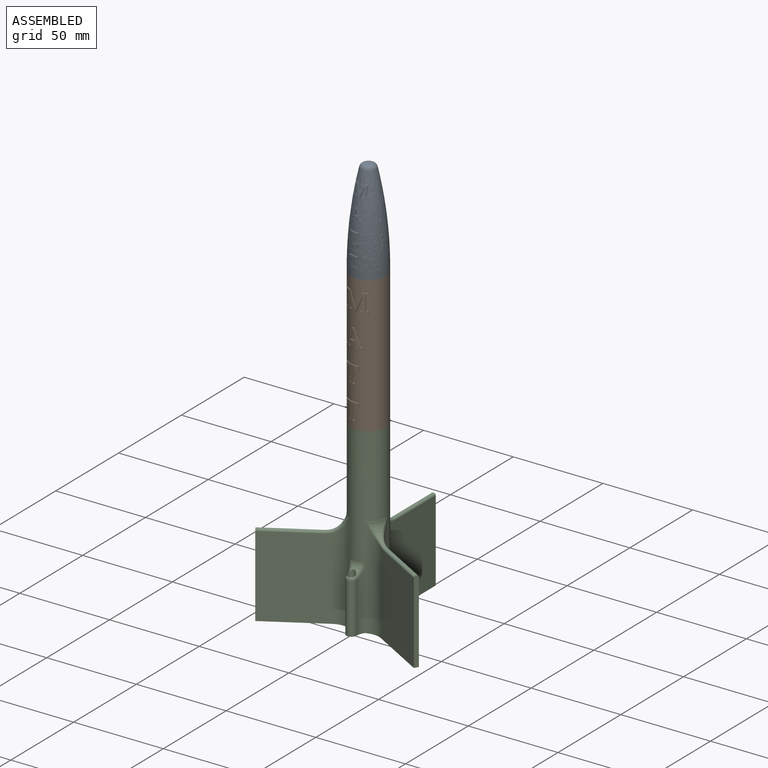
[diagram: assembled view]
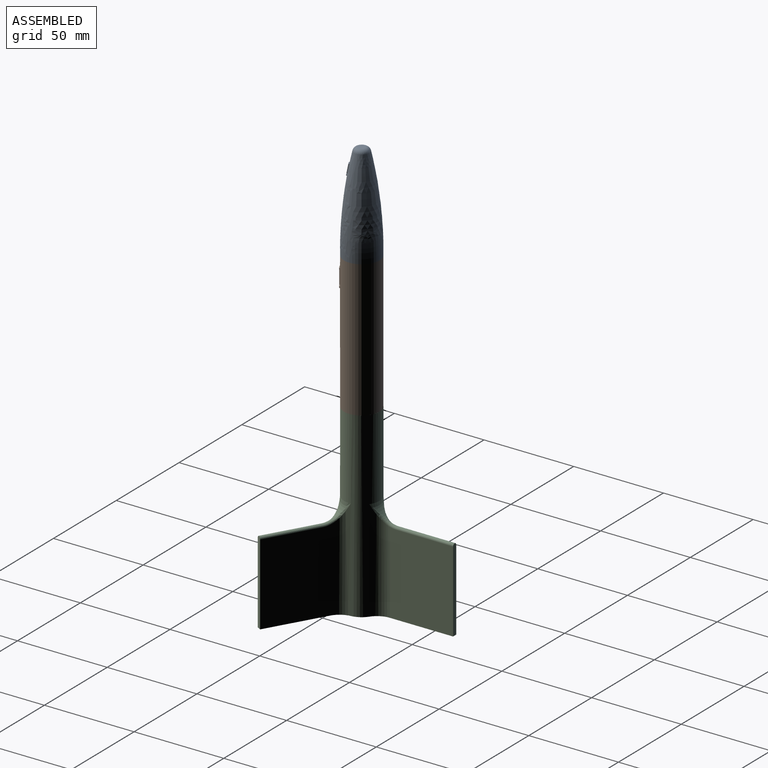
[diagram: assembled view, second angle]
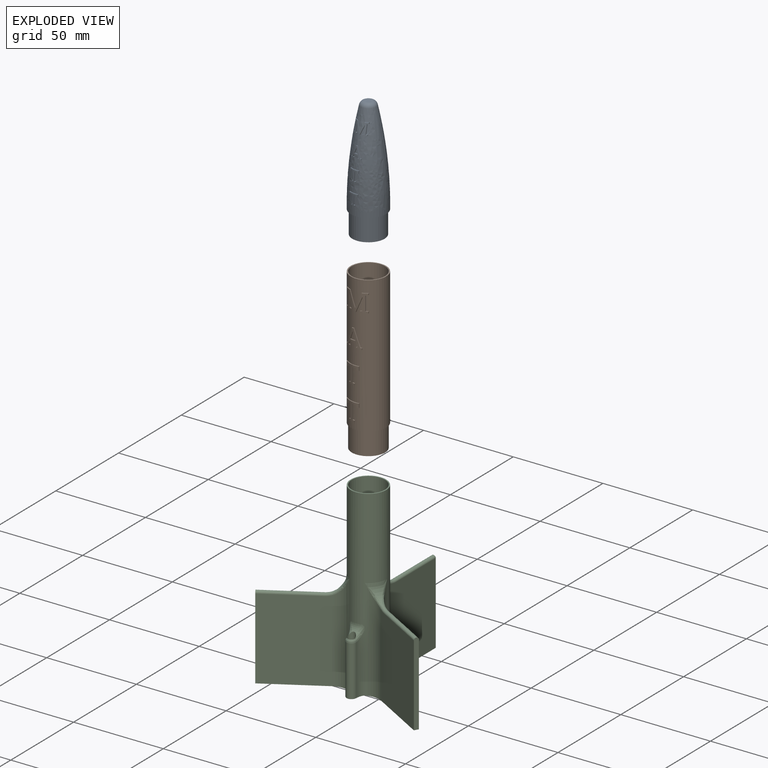
[diagram: exploded view]
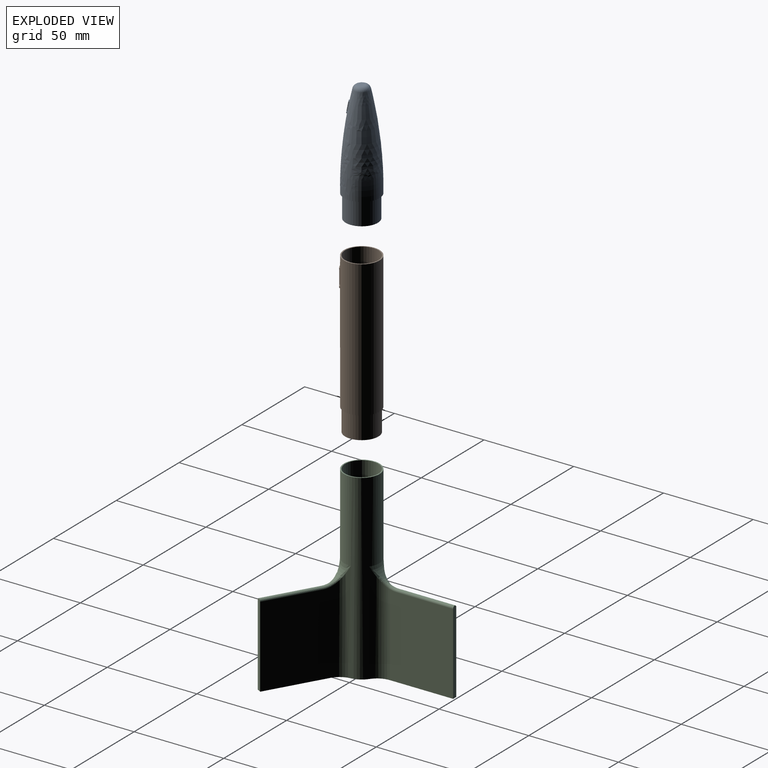
[diagram: exploded view, second angle]
ASSEMBLY  parts=3 mates=2
PART A: 105 faces, bbox 19.9x20.4x67.3 mm
  f0: revolved ~50.1x19.84mm, area 2490mm2, adj f12,f16,f18,f19,f20,f21,f22,f23
  f1: plane 17.3x17.3mm, normal (0,0,1), area 16.3mm2, adj f3,f104
  f2: cylinder r=8.98mm len=17.96mm, axis (0,0,-1), area 716.5mm2, adj f4,f13
  f3: cylinder r=8.34mm len=16.69mm, axis (0,0,-1), area 705.7mm2, adj f1,f4,f7,f8,f9,f10,f11
  f4: plane 17.96x17.96mm, normal (0,0,-1), area 95.4mm2, adj f2,f3,f5,f6,f8,f9,f10,f11
  f5: plane 12.8x6.35mm, normal (0,-1,0), area 81.3mm2, adj f4,f7,f8,f11
  f6: plane 12.8x6.35mm, normal (0,1,0), area 81.3mm2, adj f4,f7,f9,f10
  f7: plane 16.69x7.15mm, normal (0,0,1), area 60.9mm2, adj f3,f5,f6,f8,f9,f10,f11
  f8: cylinder r=1.27mm len=6.35mm, axis (0,0,-1), area 16.2mm2, adj f3,f4,f5,f7
  f9: cylinder r=1.27mm len=6.35mm, axis (0,0,-1), area 16.2mm2, adj f3,f4,f6,f7
  f10: cylinder r=1.27mm len=6.35mm, axis (0,0,-1), area 16.2mm2, adj f3,f4,f6,f7
  f11: cylinder r=1.27mm len=6.35mm, axis (0,0,-1), area 16.2mm2, adj f3,f4,f5,f7
  f12: cylinder r=9.92mm len=19.84mm, axis (0,0,1), area 158.3mm2, adj f0,f13
  f13: plane 19.84x19.84mm, normal (0,0,-1), area 55.8mm2, adj f2,f12
  f14: plane 5.61x5.61mm, normal (0,0,-1), area 24.7mm2, adj f104
  f15: plane 3.59x3.59mm, normal (0,0,1), area 10.1mm2, adj f16
  f16: torus R=1.79mm, axis (0,0,-1), area 70.1mm2, adj f0,f15
  f17: revolved ~9.14x6.27mm, area 23.4mm2, adj f18,f19,f20,f21,f22,f23,f24,f25
  f18: plane 0.65x0.55mm, normal (1,0,0), area 0.3mm2, adj f0,f17,f19,f46
  f19: plane 1.04x0.71mm, normal (0.17,0,-0.99), area 0.4mm2, adj f0,f17,f18,f20
  f20: plane 4.94x1.54mm, normal (1,0,0), area 2.5mm2, adj f0,f17,f19,f21
  f21: plane 0.89x0.7mm, normal (0.17,0,0.99), area 0.4mm2, adj f0,f17,f20,f22
  f22: plane 0.62x0.54mm, normal (1,0,0), area 0.3mm2, adj f0,f17,f21,f47
  f23: plane 5.1x1.99mm, normal (-0.93,0,0.36), area 2.8mm2, adj f0,f17,f45,f46
  f24: plane 5.1x2mm, normal (0.93,0,0.37), area 2.8mm2, adj f0,f17,f44,f45
  f25: plane 0.62x0.54mm, normal (-1,0,0), area 0.3mm2, adj f0,f17,f26,f43
  f26: plane 0.93x0.7mm, normal (-0.17,0,0.99), area 0.4mm2, adj f0,f17,f25,f27
  f27: plane 4.94x1.57mm, normal (-1,0,0), area 2.5mm2, adj f0,f17,f26,f28
  f28: plane 1.1x0.71mm, normal (-0.17,0,-0.99), area 0.4mm2, adj f0,f17,f27,f29
  f29: plane 0.66x0.55mm, normal (-1,0,0), area 0.3mm2, adj f0,f17,f28,f44
  f30: plane 5.02x2.03mm, normal (-0.93,0,-0.37), area 2.8mm2, adj f0,f17,f31,f42
  f31: plane 0.52x0.02mm, normal (0.18,0,-0.98), area 0mm2, adj f0,f17,f30,f32
  f32: plane 2.55x1.07mm, normal (1,0,0.03), area 1.3mm2, adj f0,f17,f31,f33
  f33: plane 1.82x0.86mm, normal (1,0,0), area 0.9mm2, adj f0,f17,f32,f34
  f34: plane 0.75x0.7mm, normal (0.17,0,0.99), area 0.4mm2, adj f0,f17,f33,f35
  f35: plane 0.6x0.54mm, normal (1,0,0), area 0.3mm2, adj f0,f17,f34,f43
  f36: plane 5.03x2.03mm, normal (0.93,0,-0.37), area 2.8mm2, adj f0,f17,f41,f42
  f37: plane 0.6x0.54mm, normal (-1,0,0), area 0.3mm2, adj f0,f17,f38,f47
  f38: plane 0.72x0.7mm, normal (-0.17,0,0.99), area 0.4mm2, adj f0,f17,f37,f39
  f39: plane 1.82x0.85mm, normal (-1,0,0), area 0.9mm2, adj f0,f17,f38,f40
  f40: plane 2.56x1.06mm, normal (-1,0,0.03), area 1.3mm2, adj f0,f17,f39,f41
  f41: plane 0.52x0.02mm, normal (-0.18,0,-0.98), area 0mm2, adj f0,f17,f36,f40
  f42: plane 0.56x0.52mm, normal (0,0,-1), area 0.3mm2, adj f0,f17,f30,f36
  f43: plane 2.25x1.55mm, normal (0,0,-1), area 1.1mm2, adj f0,f17,f25,f35
  f44: plane 1.79x1.67mm, normal (0,0,1), area 0.9mm2, adj f0,f17,f24,f29
  f45: plane 0.51x0.03mm, normal (0,0,1), area 0mm2, adj f0,f17,f23,f24
  f46: plane 1.79x1.55mm, normal (0,0,1), area 0.9mm2, adj f0,f17,f18,f23
  f47: plane 2.25x1.44mm, normal (0,0,-1), area 1.1mm2, adj f0,f17,f22,f37
  f48: plane 1.16x0.52mm, normal (0.94,0,-0.35), area 0.6mm2, adj f0,f49,f62,f64
  f49: plane 0.66x0.47mm, normal (0.17,0,0.99), area 0.2mm2, adj f0,f48,f50,f64
  f50: plane 0.57x0.54mm, normal (1,0,0), area 0.3mm2, adj f0,f49,f63,f64
  f51: plane 0.57x0.54mm, normal (-1,0,0), area 0.3mm2, adj f0,f52,f61,f64
  f52: plane 0.54x0.47mm, normal (-0.17,0,0.99), area 0.2mm2, adj f0,f51,f53,f64
  f53: plane 1.16x0.63mm, normal (-0.94,0,-0.34), area 0.6mm2, adj f0,f52,f62,f64
  f54: plane 5.66x2.15mm, normal (0.93,0,0.36), area 3.1mm2, adj f0,f55,f60,f64
  f55: plane 0.6x0.46mm, normal (0.14,0,0.99), area 0.2mm2, adj f0,f54,f56,f64
  f56: plane 0.57x0.54mm, normal (1,0,0), area 0.3mm2, adj f0,f55,f61,f64
  f57: plane 5.66x2.19mm, normal (-0.93,0,0.36), area 3.1mm2, adj f0,f59,f60,f64
  f58: plane 0.58x0.54mm, normal (-1,0,0), area 0.3mm2, adj f0,f59,f63,f64
  f59: plane 0.73x0.47mm, normal (-0.14,0,0.99), area 0.2mm2, adj f0,f57,f58,f64
  f60: plane 0.73x0.6mm, normal (0,0,1), area 0.4mm2, adj f0,f54,f57,f64
  f61: plane 1.8x0.75mm, normal (0,0,-1), area 0.9mm2, adj f0,f51,f56,f64
  f62: plane 2.51x0.82mm, normal (0,0,-1), area 1.3mm2, adj f0,f48,f53,f64
  f63: plane 1.8x1.22mm, normal (0,0,-1), area 0.9mm2, adj f0,f50,f58,f64
  f64: revolved ~6.27x6.04mm, area 12.8mm2, adj f48,f49,f50,f51,f52,f53,f54,f55
  f65: plane 2.71x1mm, normal (0.94,0,-0.35), area 1.5mm2, adj f64,f67,f68,f69
  f66: plane 2.71x1mm, normal (-0.94,0,-0.34), area 1.5mm2, adj f64,f67,f68,f69
  f67: plane 0.51x0.03mm, normal (0,0,-1), area 0mm2, adj f64,f65,f66,f69
  f68: plane 1.99x0.75mm, normal (0,0,1), area 1mm2, adj f64,f65,f66,f69
  f69: revolved ~2.69x1.99mm, area 2.7mm2, adj f65,f66,f67,f68
  f70: revolved ~6.27x5.49mm, area 10.4mm2, adj f71,f72,f73,f74,f75,f76,f77,f78
  f71: plane 1.39x0.65mm, normal (-1,0,0), area 0.7mm2, adj f0,f70,f85,f86
  f72: plane 0.72x0.55mm, normal (1,0,-0.08), area 0.4mm2, adj f0,f70,f84,f85
  f73: plane 0.54x0.54mm, normal (-1,0,0), area 0.3mm2, adj f0,f70,f74,f83
  f74: plane 0.7x0.67mm, normal (-0.17,0,0.99), area 0.4mm2, adj f0,f70,f73,f75
  f75: plane 4.95x0.91mm, normal (-1,0,0), area 2.5mm2, adj f0,f70,f74,f84
  f76: plane 4.95x0.9mm, normal (1,0,0), area 2.5mm2, adj f0,f70,f77,f82
  f77: plane 0.7x0.57mm, normal (0.17,0,0.99), area 0.4mm2, adj f0,f70,f76,f78
  f78: plane 0.54x0.54mm, normal (1,0,0), area 0.3mm2, adj f0,f70,f77,f83
  f79: plane 0.72x0.57mm, normal (-1,0,-0.09), area 0.4mm2, adj f0,f70,f81,f82
  f80: plane 1.39x0.63mm, normal (1,0,0), area 0.7mm2, adj f0,f70,f81,f86
  f81: plane 0.72x0.57mm, normal (0,0,-1), area 0.4mm2, adj f0,f70,f79,f80
  f82: plane 1.39x0.57mm, normal (0,0,-1), area 0.7mm2, adj f0,f70,f76,f79
  f83: plane 2.25x0.86mm, normal (0,0,-1), area 1.1mm2, adj f0,f70,f73,f78
  f84: plane 1.39x0.92mm, normal (0,0,-1), area 0.7mm2, adj f0,f70,f72,f75
  f85: plane 0.83x0.73mm, normal (0,0,-1), area 0.4mm2, adj f0,f70,f71,f72
  f86: plane 5.21x1.48mm, normal (0,0,1), area 2.6mm2, adj f0,f70,f71,f80
  f87: revolved ~6.27x5.29mm, area 10.4mm2, adj f88,f89,f90,f91,f92,f93,f94,f95
  f88: plane 1.39x0.56mm, normal (-1,0,0), area 0.7mm2, adj f0,f87,f102,f103
  f89: plane 0.72x0.51mm, normal (1,0,-0.08), area 0.4mm2, adj f0,f87,f101,f102
  f90: plane 0.54x0.52mm, normal (-1,0,0), area 0.3mm2, adj f0,f87,f91,f100
  f91: plane 0.7x0.67mm, normal (-0.17,0,0.99), area 0.4mm2, adj f0,f87,f90,f92
  f92: plane 4.95x0.64mm, normal (-1,0,0), area 2.5mm2, adj f0,f87,f91,f101
  f93: plane 4.95x0.64mm, normal (1,0,0), area 2.5mm2, adj f0,f87,f94,f99
  f94: plane 0.7x0.56mm, normal (0.17,0,0.99), area 0.4mm2, adj f0,f87,f93,f95
  f95: plane 0.54x0.51mm, normal (1,0,0), area 0.3mm2, adj f0,f87,f94,f100
  f96: plane 0.72x0.53mm, normal (-1,0,-0.09), area 0.4mm2, adj f0,f87,f98,f99
  f97: plane 1.39x0.56mm, normal (1,0,0), area 0.7mm2, adj f0,f87,f98,f103
  f98: plane 0.72x0.57mm, normal (0,0,-1), area 0.4mm2, adj f0,f87,f96,f97
  f99: plane 1.39x0.56mm, normal (0,0,-1), area 0.7mm2, adj f0,f87,f93,f96
  f100: plane 2.25x0.85mm, normal (0,0,-1), area 1.1mm2, adj f0,f87,f90,f95
  f101: plane 1.39x0.89mm, normal (0,0,-1), area 0.7mm2, adj f0,f87,f89,f92
  f102: plane 0.81x0.73mm, normal (0,0,-1), area 0.4mm2, adj f0,f87,f88,f89
  f103: plane 5.21x1.4mm, normal (0,0,1), area 2.6mm2, adj f0,f87,f88,f97
  f104: revolved ~50.8x17.3mm, area 2156.5mm2, adj f1,f14
PART B: 120 faces, bbox 20x20.4x89 mm
  f0: cylinder r=9.28mm len=72.39mm, axis (0,0,-1), area 3696.3mm2, adj f2,f8,f9,f13,f14,f113,f114,f115
  f1: cylinder r=9.92mm len=76.2mm, axis (0,0,-1), area 4594.7mm2, adj f2,f3,f16,f17,f18,f19,f20,f21
  f2: plane 19.84x19.84mm, normal (0,0,1), area 38.3mm2, adj f0,f1
  f3: plane 19.84x19.84mm, normal (0,0,-1), area 38.3mm2, adj f1,f4
  f4: cylinder r=9.28mm len=18.57mm, axis (0,0,1), area 740.8mm2, adj f3,f7
  f5: cylinder r=8.47mm len=19.05mm, axis (0,0,1), area 1006.3mm2, adj f6,f7,f8,f113,f114,f116,f117,f118
  f6: cylinder r=8.47mm len=1.67mm, axis (0,0,1), area 1.8mm2, adj f5,f8,f115,f119
  f7: plane 18.57x18.57mm, normal (0,0,-1), area 45.3mm2, adj f4,f5
  f8: torus R=4.2mm, axis (0,0,-1), area 160.9mm2, adj f0,f5,f6,f116,f119
  f9: cylinder r=4.22mm len=26.67mm, axis (0,0,1), area 217.7mm2, adj f0,f11,f12,f13,f14,f102,f103,f104
  f10: cylinder r=1.65mm len=23.93mm, axis (0,0,1), area 211.2mm2, adj f13,f14,f102,f103,f104,f105,f107,f108
  f11: plane 2.76x0.42mm, normal (0,0,-1), area 0.8mm2, adj f9,f14
  f12: plane 2.76x0.42mm, normal (0,0,1), area 0.8mm2, adj f9,f13
  f13: torus R=5.47mm, axis (0,0,1), area 31.3mm2, adj f0,f9,f10,f12
  f14: torus R=5.47mm, axis (0,0,1), area 31.3mm2, adj f0,f9,f10,f11
  f15: cylinder r=9.92mm len=12.15mm, axis (0,0,-1), area 59mm2, adj f16,f17,f18,f19,f20,f21,f22,f23
  f16: plane 2.91x0.51mm, normal (-1,0,0), area 1.5mm2, adj f1,f15,f43,f44
  f17: plane 0.87x0.51mm, normal (-1,0,0), area 0.4mm2, adj f1,f15,f42,f43
  f18: plane 0.87x0.51mm, normal (1,0,0), area 0.4mm2, adj f1,f15,f41,f42
  f19: plane 7.9x0.51mm, normal (1,0,0), area 4mm2, adj f1,f15,f40,f41
  f20: plane 0.88x0.51mm, normal (1,0,0), area 0.4mm2, adj f1,f15,f39,f40
  f21: plane 0.88x0.51mm, normal (-1,0,0), area 0.4mm2, adj f1,f15,f34,f35
  f22: plane 7.9x0.51mm, normal (-1,0,0), area 4mm2, adj f1,f15,f33,f34
  f23: plane 0.87x0.51mm, normal (-1,0,0), area 0.4mm2, adj f1,f15,f32,f33
  f24: plane 0.87x0.51mm, normal (1,0,0), area 0.4mm2, adj f1,f15,f31,f32
  f25: plane 2.91x0.51mm, normal (1,0,0), area 1.5mm2, adj f1,f15,f30,f31
  f26: plane 8.04x3.25mm, normal (0.93,0,-0.37), area 4.4mm2, adj f1,f15,f27,f45
  f27: plane 0.9x0.53mm, normal (0,0,-1), area 0.5mm2, adj f1,f15,f26,f28
  f28: plane 8.03x3.25mm, normal (-0.93,0,-0.37), area 4.4mm2, adj f1,f15,f27,f29
  f29: plane 0.52x0.04mm, normal (0.18,0,-0.98), area 0mm2, adj f1,f15,f28,f30
  f30: plane 4.07x0.57mm, normal (1,0,0.03), area 2.1mm2, adj f1,f15,f25,f29
  f31: plane 1.12x0.9mm, normal (0.17,0,0.99), area 0.6mm2, adj f1,f15,f24,f25
  f32: plane 3.6x2.38mm, normal (0,0,-1), area 1.8mm2, adj f1,f15,f23,f24
  f33: plane 1.31x1.13mm, normal (-0.17,0,0.99), area 0.6mm2, adj f1,f15,f22,f23
  f34: plane 1.31x1.13mm, normal (-0.17,0,-0.99), area 0.6mm2, adj f1,f15,f21,f22
  f35: plane 2.86x2.14mm, normal (0,0,1), area 1.5mm2, adj f1,f15,f21,f36
  f36: plane 8.15x3.2mm, normal (0.93,0,0.37), area 4.4mm2, adj f1,f15,f35,f37
  f37: plane 0.51x0.04mm, normal (0,0,1), area 0mm2, adj f1,f15,f36,f38
  f38: plane 8.15x3.19mm, normal (-0.93,0,0.36), area 4.4mm2, adj f1,f15,f37,f39
  f39: plane 2.87x1.97mm, normal (0,0,1), area 1.5mm2, adj f1,f15,f20,f38
  f40: plane 1.23x1.13mm, normal (0.17,0,-0.99), area 0.6mm2, adj f1,f15,f19,f20
  f41: plane 1.23x1.13mm, normal (0.17,0,0.99), area 0.6mm2, adj f1,f15,f18,f19
  f42: plane 3.6x2.18mm, normal (0,0,-1), area 1.8mm2, adj f1,f15,f17,f18
  f43: plane 1.12x0.85mm, normal (-0.17,0,0.99), area 0.6mm2, adj f1,f15,f16,f17
  f44: plane 4.07x0.56mm, normal (-1,0,0.03), area 2.1mm2, adj f1,f15,f16,f45
  f45: plane 0.52x0.04mm, normal (-0.18,0,-0.98), area 0mm2, adj f1,f15,f26,f44
  f46: plane 0.87x0.51mm, normal (1,0,0), area 0.4mm2, adj f1,f51,f53,f57
  f47: plane 0.87x0.51mm, normal (-1,0,0), area 0.4mm2, adj f1,f53,f61,f62
  f48: plane 0.87x0.51mm, normal (1,0,0), area 0.4mm2, adj f1,f53,f62,f63
  f49: plane 9.06x3.51mm, normal (-0.93,0,0.36), area 4.9mm2, adj f1,f50,f53,f65
  f50: plane 1.08x0.74mm, normal (-0.14,0,0.99), area 0.4mm2, adj f1,f49,f52,f53
  f51: plane 2.87x2.19mm, normal (0,0,-1), area 1.5mm2, adj f1,f46,f52,f53
  f52: plane 0.87x0.51mm, normal (-1,0,0), area 0.4mm2, adj f1,f50,f51,f53
  f53: cylinder r=9.92mm len=10.03mm, axis (0,0,-1), area 33.2mm2, adj f46,f47,f48,f49,f50,f51,f52,f54
  f54: plane 3.18x1.03mm, normal (0,0,1), area 1.6mm2, adj f53,f55,f66,f67
  f55: plane 4.31x1.59mm, normal (0.94,0,-0.35), area 2.3mm2, adj f53,f54,f56,f67
  f56: plane 0.51x0.04mm, normal (0,0,-1), area 0mm2, adj f53,f55,f66,f67
  f57: plane 0.83x0.76mm, normal (0.17,0,0.99), area 0.4mm2, adj f1,f46,f53,f58
  f58: plane 1.86x0.82mm, normal (0.94,0,-0.35), area 1mm2, adj f1,f53,f57,f59
  f59: plane 4.02x1.18mm, normal (0,0,-1), area 2mm2, adj f1,f53,f58,f60
  f60: plane 1.85x0.66mm, normal (-0.94,0,-0.34), area 1mm2, adj f1,f53,f59,f61
  f61: plane 0.76x0.56mm, normal (-0.17,0,0.99), area 0.4mm2, adj f1,f47,f53,f60
  f62: plane 2.88x1.04mm, normal (0,0,-1), area 1.5mm2, adj f1,f47,f48,f53
  f63: plane 0.74x0.73mm, normal (0.14,0,0.99), area 0.4mm2, adj f1,f48,f53,f64
  f64: plane 9.06x3.45mm, normal (0.93,0,0.36), area 4.9mm2, adj f1,f53,f63,f65
  f65: plane 1.16x0.69mm, normal (0,0,1), area 0.6mm2, adj f1,f49,f53,f64
  f66: plane 4.32x1.57mm, normal (-0.94,0,-0.34), area 2.3mm2, adj f53,f54,f56,f67
  f67: cylinder r=9.92mm len=4.31mm, axis (0,0,-1), area 7mm2, adj f54,f55,f56,f66
  f68: plane 2.22x0.51mm, normal (1,0,0), area 1.1mm2, adj f1,f75,f78,f84
  f69: plane 7.9x0.51mm, normal (-1,0,0), area 4mm2, adj f1,f74,f78,f79
  f70: plane 0.87x0.51mm, normal (-1,0,0), area 0.4mm2, adj f1,f78,f79,f80
  f71: plane 0.87x0.51mm, normal (1,0,0), area 0.4mm2, adj f1,f78,f80,f81
  f72: plane 7.9x0.51mm, normal (1,0,0), area 4mm2, adj f1,f78,f81,f82
  f73: plane 1.15x0.57mm, normal (1,0,-0.08), area 0.6mm2, adj f1,f74,f76,f78
  f74: plane 2.23x1.54mm, normal (0,0,-1), area 1.1mm2, adj f1,f69,f73,f78
  f75: plane 8.34x2.94mm, normal (0,0,1), area 4.2mm2, adj f1,f68,f77,f78
  f76: plane 1.38x1.16mm, normal (0,0,-1), area 0.6mm2, adj f1,f73,f77,f78
  f77: plane 2.22x0.51mm, normal (-1,0,0), area 1.1mm2, adj f1,f75,f76,f78
  f78: cylinder r=9.92mm len=10.03mm, axis (0,0,-1), area 27.5mm2, adj f68,f69,f70,f71,f72,f73,f74,f75
  f79: plane 1.12x0.94mm, normal (-0.17,0,0.99), area 0.6mm2, adj f1,f69,f70,f78
  f80: plane 3.6x1.4mm, normal (0,0,-1), area 1.8mm2, adj f1,f70,f71,f78
  f81: plane 1.12x0.63mm, normal (0.17,0,0.99), area 0.6mm2, adj f1,f71,f72,f78
  f82: plane 2.22x0.65mm, normal (0,0,-1), area 1.1mm2, adj f1,f72,f78,f83
  f83: plane 1.15x0.51mm, normal (-1,0,-0.09), area 0.6mm2, adj f1,f78,f82,f84
  f84: plane 1.16x0.66mm, normal (0,0,-1), area 0.6mm2, adj f1,f68,f78,f83
  f85: plane 2.22x0.51mm, normal (1,0,0), area 1.1mm2, adj f1,f91,f92,f101
  f86: plane 2.22x0.51mm, normal (-1,0,0), area 1.1mm2, adj f1,f91,f92,f93
  f87: plane 0.87x0.51mm, normal (-1,0,0), area 0.4mm2, adj f1,f91,f96,f97
  f88: plane 0.87x0.51mm, normal (1,0,0), area 0.4mm2, adj f1,f91,f97,f98
  f89: plane 7.9x0.51mm, normal (-1,0,0), area 4mm2, adj f1,f91,f95,f96
  f90: plane 7.9x0.51mm, normal (1,0,0), area 4mm2, adj f1,f91,f98,f99
  f91: cylinder r=9.92mm len=10.03mm, axis (0,0,-1), area 27.5mm2, adj f85,f86,f87,f88,f89,f90,f92,f93
  f92: plane 8.34x2.94mm, normal (0,0,1), area 4.2mm2, adj f1,f85,f86,f91
  f93: plane 1.38x1.16mm, normal (0,0,-1), area 0.6mm2, adj f1,f86,f91,f94
  f94: plane 1.15x0.57mm, normal (1,0,-0.08), area 0.6mm2, adj f1,f91,f93,f95
  f95: plane 2.23x1.54mm, normal (0,0,-1), area 1.1mm2, adj f1,f89,f91,f94
  f96: plane 1.12x0.94mm, normal (-0.17,0,0.99), area 0.6mm2, adj f1,f87,f89,f91
  f97: plane 3.6x1.4mm, normal (0,0,-1), area 1.8mm2, adj f1,f87,f88,f91
  f98: plane 1.12x0.63mm, normal (0.17,0,0.99), area 0.6mm2, adj f1,f88,f90,f91
  f99: plane 2.22x0.65mm, normal (0,0,-1), area 1.1mm2, adj f1,f90,f91,f100
  f100: plane 1.15x0.51mm, normal (-1,0,-0.09), area 0.6mm2, adj f1,f91,f99,f101
  f101: plane 1.16x0.66mm, normal (0,0,-1), area 0.6mm2, adj f1,f85,f91,f100
  f102: plane 2.43x0.65mm, normal (0,-1,0), area 1mm2, adj f9,f10,f104,f105,f106
  f103: plane 1.39x0.87mm, normal (1,0,0), area 1.2mm2, adj f9,f10,f104,f105
  f104: plane 2.7x1.31mm, normal (0,0,1), area 1.7mm2, adj f9,f10,f102,f103
  f105: plane 2.74x0.79mm, normal (0.14,0,-0.99), area 1.1mm2, adj f9,f10,f102,f103,f106
  f106: plane 1.77x1.45mm, normal (0.93,0,-0.36), area 1.7mm2, adj f9,f102,f105
  f107: plane 2.22x0.65mm, normal (0,-1,0), area 1.2mm2, adj f9,f10,f109,f110,f111,f112
  f108: plane 2.22x1.41mm, normal (1,0,0), area 3.1mm2, adj f9,f10,f109,f110
  f109: plane 2.81x1.16mm, normal (0,0,1), area 1.7mm2, adj f9,f10,f107,f108,f112
  f110: plane 2.81x1.43mm, normal (0,0,-1), area 1.9mm2, adj f9,f10,f107,f108
  f111: plane 0.87x0.17mm, normal (0,0,1), area 0.1mm2, adj f9,f107,f112
  f112: plane 1.21x1.21mm, normal (-1,0,0.08), area 1.2mm2, adj f9,f107,f109,f111
  f113: plane 1.39x1.13mm, normal (0.17,0,-0.99), area 1mm2, adj f0,f5,f116,f117
  f114: plane 3.6x1.87mm, normal (0,0,1), area 3.1mm2, adj f0,f5,f117,f118
  f115: plane 1.12x0.96mm, normal (-0.17,0,-0.99), area 0.9mm2, adj f0,f6,f118,f119
  f116: plane 4.24x0.87mm, normal (1,0,0), area 2mm2, adj f0,f5,f8,f113
  f117: plane 0.92x0.87mm, normal (1,0,0), area 0.8mm2, adj f0,f5,f113,f114
  f118: plane 0.87x0.81mm, normal (-1,0,0), area 0.7mm2, adj f0,f5,f114,f115
  f119: plane 4.32x0.92mm, normal (-1,0,0), area 2mm2, adj f0,f6,f8,f115
PART C: 165 faces, bbox 91x78.8x101.6 mm
  f0: plane 45.8x35.29mm, normal (-1,0,0), area 1511.2mm2, adj f5,f6,f8,f11,f13,f48,f49,f50
  f1: cylinder r=9.28mm len=18.57mm, axis (0,0,-1), area 889mm2, adj f4,f44
  f2: cylinder r=9.28mm len=73.66mm, axis (0,0,-1), area 4288.1mm2, adj f5,f45,f46,f47
  f3: cylinder r=9.92mm len=101.6mm, axis (0,0,-1), area 3980.1mm2, adj f4,f5,f8,f9,f10,f18,f19,f20
  f4: plane 19.84x19.84mm, normal (0,0,1), area 38.3mm2, adj f1,f3
  f5: plane 90.98x78.79mm, normal (0,0,-1), area 420.3mm2, adj f0,f2,f3,f6,f7,f8,f9,f15
  f6: plane 46.5x2.54mm, normal (0,1,0), area 117.4mm2, adj f0,f5,f7,f11
  f7: plane 45.8x35.29mm, normal (1,0,0), area 1596.5mm2, adj f5,f6,f9,f11,f13
  f8: cylinder r=10.16mm len=56.66mm, axis (0,0,-1), area 502.4mm2, adj f0,f3,f5,f14
  f9: cylinder r=10.16mm len=56.66mm, axis (0,0,-1), area 502.4mm2, adj f3,f5,f7,f12
  f10: torus R=20.08mm, axis (0,0,-1), area 86.2mm2, adj f3,f12,f14
  f11: cylinder r=1.27mm len=31.71mm, axis (0,1,0), area 126.5mm2, adj f0,f6,f7,f13
  f12: bspline ~11.3x10.36mm, area 10.9mm2, adj f9,f10,f13
  f13: torus R=11.43mm, axis (1,0,0), area 13.5mm2, adj f0,f7,f11,f12,f14
  f14: bspline ~11.3x10.36mm, area 10.9mm2, adj f8,f10,f13
  f15: plane 45.8x30.56mm, normal (-0.5,-0.87,0), area 1596.5mm2, adj f5,f17,f20,f21,f23
  f16: plane 45.8x30.56mm, normal (0.5,0.87,0), area 1596.5mm2, adj f5,f17,f18,f21,f23
  f17: plane 46.5x2.2mm, normal (0.87,-0.5,0), area 117.4mm2, adj f5,f15,f16,f21
  f18: cylinder r=10.16mm len=56.66mm, axis (0,0,-1), area 502.4mm2, adj f3,f5,f16,f24
  f19: torus R=20.08mm, axis (0,0,-1), area 86.2mm2, adj f3,f22,f24
  f20: cylinder r=10.16mm len=56.66mm, axis (0,0,-1), area 502.4mm2, adj f3,f5,f15,f22,f36
  f21: cylinder r=1.27mm len=28.74mm, axis (0.87,-0.5,0), area 126.5mm2, adj f15,f16,f17,f23
  f22: bspline ~11.72x11.3mm, area 10.9mm2, adj f19,f20,f23
  f23: torus R=11.43mm, axis (-0.5,-0.87,0), area 13.5mm2, adj f15,f16,f21,f22,f24
  f24: bspline ~11.3x9.95mm, area 10.9mm2, adj f18,f19,f23
  f25: plane 45.8x30.56mm, normal (-0.5,0.87,0), area 1596.5mm2, adj f5,f27,f30,f31,f33
  f26: plane 45.8x30.56mm, normal (0.5,-0.87,0), area 1596.5mm2, adj f5,f27,f28,f31,f33
  f27: plane 46.5x2.2mm, normal (-0.87,-0.5,0), area 117.4mm2, adj f5,f25,f26,f31
  f28: cylinder r=10.16mm len=56.66mm, axis (0,0,-1), area 502.4mm2, adj f3,f5,f26,f34,f35
  f29: torus R=20.08mm, axis (0,0,-1), area 86.2mm2, adj f3,f32,f34
  f30: cylinder r=10.16mm len=56.66mm, axis (0,0,-1), area 502.4mm2, adj f3,f5,f25,f32
  f31: cylinder r=1.27mm len=28.74mm, axis (-0.87,-0.5,0), area 126.5mm2, adj f25,f26,f27,f33
  f32: bspline ~11.3x9.95mm, area 10.9mm2, adj f29,f30,f33
  f33: torus R=11.43mm, axis (-0.5,0.87,0), area 13.5mm2, adj f25,f26,f31,f32,f34
  f34: bspline ~11.72x11.3mm, area 10.9mm2, adj f28,f29,f33
  f35: cylinder r=7.73mm len=33.12mm, axis (0,0,-1), area 149.7mm2, adj f5,f28,f37,f42
  f36: cylinder r=7.73mm len=33.12mm, axis (0,0,-1), area 149.7mm2, adj f5,f20,f37,f40
  f37: cylinder r=2.74mm len=28.08mm, axis (0,0,-1), area 242mm2, adj f5,f35,f36,f41
  f38: cylinder r=2.1mm len=31.93mm, axis (0,0,-1), area 400.6mm2, adj f5,f39,f40,f41,f42
  f39: torus R=15mm, axis (0,0,-1), area 20mm2, adj f3,f38,f40,f42
  f40: bspline ~8x6.43mm, area 18.5mm2, adj f3,f36,f38,f39,f41
  f41: bspline ~5.49x2.74mm, area 13.4mm2, adj f37,f38,f40,f42
  f42: bspline ~8x6.43mm, area 17.4mm2, adj f3,f35,f38,f39,f41
  f43: cylinder r=7.62mm len=15.24mm, axis (0,0,-1), area 608mm2, adj f44,f45
  f44: plane 18.57x18.57mm, normal (0,0,1), area 88.4mm2, adj f1,f43
  f45: plane 18.57x18.57mm, normal (0,0,-1), area 88.4mm2, adj f2,f43
  f46: cylinder r=2.54mm len=3.75mm, axis (0,0,-1), area 9.6mm2, adj f2,f5,f47
  f47: plane 3.75x1.02mm, normal (0,0,1), area 2.6mm2, adj f2,f46
  f48: plane 0.51x0.02mm, normal (0,0.18,-0.98), area 0mm2, adj f0,f49,f77,f78
  f49: plane 2.81x0.51mm, normal (0,1,0.03), area 1.4mm2, adj f0,f48,f50,f78
  f50: plane 2.01x0.51mm, normal (0,1,0), area 1mm2, adj f0,f49,f51,f78
  f51: plane 0.78x0.51mm, normal (0,0.17,0.99), area 0.4mm2, adj f0,f50,f52,f78
  f52: plane 0.6x0.51mm, normal (0,1,0), area 0.3mm2, adj f0,f51,f53,f78
  f53: plane 2.49x0.51mm, normal (0,0,-1), area 1.3mm2, adj f0,f52,f54,f78
  f54: plane 0.6x0.51mm, normal (0,-1,0), area 0.3mm2, adj f0,f53,f55,f78
  f55: plane 0.78x0.51mm, normal (0,-0.17,0.99), area 0.4mm2, adj f0,f54,f56,f78
  f56: plane 5.47x0.51mm, normal (0,-1,0), area 2.8mm2, adj f0,f55,f57,f78
  f57: plane 0.78x0.51mm, normal (0,-0.17,-0.99), area 0.4mm2, adj f0,f56,f58,f78
  f58: plane 0.61x0.51mm, normal (0,-1,0), area 0.3mm2, adj f0,f57,f59,f78
  f59: plane 1.98x0.51mm, normal (0,0,1), area 1mm2, adj f0,f58,f60,f78
  f60: plane 5.64x2.2mm, normal (0,0.93,0.36), area 3.1mm2, adj f0,f59,f61,f78
  f61: plane 0.51x0.03mm, normal (0,0,1), area 0mm2, adj f0,f60,f62,f78
  f62: plane 5.64x2.21mm, normal (0,-0.93,0.37), area 3.1mm2, adj f0,f61,f63,f78
  f63: plane 1.98x0.51mm, normal (0,0,1), area 1mm2, adj f0,f62,f64,f78
  f64: plane 0.61x0.51mm, normal (0,1,0), area 0.3mm2, adj f0,f63,f65,f78
  f65: plane 0.78x0.51mm, normal (0,0.17,-0.99), area 0.4mm2, adj f0,f64,f66,f78
  f66: plane 5.47x0.51mm, normal (0,1,0), area 2.8mm2, adj f0,f65,f67,f78
  f67: plane 0.78x0.51mm, normal (0,0.17,0.99), area 0.4mm2, adj f0,f66,f68,f78
  f68: plane 0.6x0.51mm, normal (0,1,0), area 0.3mm2, adj f0,f67,f69,f78
  f69: plane 2.49x0.51mm, normal (0,0,-1), area 1.3mm2, adj f0,f68,f70,f78
  f70: plane 0.6x0.51mm, normal (0,-1,0), area 0.3mm2, adj f0,f69,f71,f78
  f71: plane 0.78x0.51mm, normal (0,-0.17,0.99), area 0.4mm2, adj f0,f70,f72,f78
  f72: plane 2.01x0.51mm, normal (0,-1,0), area 1mm2, adj f0,f71,f73,f78
  f73: plane 2.81x0.51mm, normal (0,-1,0.03), area 1.4mm2, adj f0,f72,f74,f78
  f74: plane 0.51x0.02mm, normal (0,-0.18,-0.98), area 0mm2, adj f0,f73,f75,f78
  f75: plane 5.56x2.24mm, normal (0,0.93,-0.37), area 3mm2, adj f0,f74,f76,f78
  f76: plane 0.62x0.51mm, normal (0,0,-1), area 0.3mm2, adj f0,f75,f77,f78
  f77: plane 5.56x2.24mm, normal (0,-0.93,-0.37), area 3mm2, adj f0,f48,f76,f78
  f78: plane 8.4x6.94mm, normal (-1,0,0), area 26.1mm2, adj f48,f49,f50,f51,f52,f53,f54,f55
  f79: plane 2.2x0.51mm, normal (0,0,1), area 1.1mm2, adj f80,f98,f99,f100
  f80: plane 2.98x1.1mm, normal (0,-0.94,-0.35), area 1.6mm2, adj f79,f81,f99,f100
  f81: plane 0.51x0.03mm, normal (0,0,-1), area 0mm2, adj f80,f98,f99,f100
  f82: plane 0.51x0.51mm, normal (0,0.14,0.99), area 0.3mm2, adj f0,f83,f97,f99
  f83: plane 0.6x0.51mm, normal (0,1,0), area 0.3mm2, adj f0,f82,f84,f99
  f84: plane 1.99x0.51mm, normal (0,0,-1), area 1mm2, adj f0,f83,f85,f99
  f85: plane 0.6x0.51mm, normal (0,-1,0), area 0.3mm2, adj f0,f84,f86,f99
  f86: plane 0.52x0.51mm, normal (0,-0.17,0.99), area 0.3mm2, adj f0,f85,f87,f99
  f87: plane 1.28x0.51mm, normal (0,-0.94,-0.35), area 0.7mm2, adj f0,f86,f88,f99
  f88: plane 2.78x0.51mm, normal (0,0,-1), area 1.4mm2, adj f0,f87,f89,f99
  f89: plane 1.28x0.51mm, normal (0,0.94,-0.34), area 0.7mm2, adj f0,f88,f90,f99
  f90: plane 0.52x0.51mm, normal (0,0.17,0.99), area 0.3mm2, adj f0,f89,f91,f99
  f91: plane 0.6x0.51mm, normal (0,1,0), area 0.3mm2, adj f0,f90,f92,f99
  f92: plane 1.99x0.51mm, normal (0,0,-1), area 1mm2, adj f0,f91,f93,f99
  f93: plane 0.6x0.51mm, normal (0,-1,0), area 0.3mm2, adj f0,f92,f94,f99
  f94: plane 0.51x0.51mm, normal (0,-0.14,0.99), area 0.3mm2, adj f0,f93,f95,f99
  f95: plane 6.26x2.38mm, normal (0,-0.93,0.36), area 3.4mm2, adj f0,f94,f96,f99
  f96: plane 0.81x0.51mm, normal (0,0,1), area 0.4mm2, adj f0,f95,f97,f99
  f97: plane 6.26x2.43mm, normal (0,0.93,0.36), area 3.4mm2, adj f0,f82,f96,f99
  f98: plane 2.98x1.08mm, normal (0,0.94,-0.34), area 1.6mm2, adj f79,f81,f99,f100
  f99: plane 6.94x6.64mm, normal (-1,0,0), area 15.2mm2, adj f79,f80,f81,f82,f83,f84,f85,f86
  f100: plane 2.98x2.2mm, normal (-1,0,0), area 3.3mm2, adj f79,f80,f81,f98
  f101: plane 1.53x0.51mm, normal (0,-1,0), area 0.8mm2, adj f0,f102,f116,f117
  f102: plane 5.76x0.51mm, normal (0,0,1), area 2.9mm2, adj f0,f101,f103,f117
  f103: plane 1.53x0.51mm, normal (0,1,0), area 0.8mm2, adj f0,f102,f104,f117
  f104: plane 0.81x0.51mm, normal (0,0,-1), area 0.4mm2, adj f0,f103,f105,f117
  f105: plane 0.8x0.51mm, normal (0,-1,-0.08), area 0.4mm2, adj f0,f104,f106,f117
  f106: plane 1.54x0.51mm, normal (0,0,-1), area 0.8mm2, adj f0,f105,f107,f117
  f107: plane 5.47x0.51mm, normal (0,1,0), area 2.8mm2, adj f0,f106,f108,f117
  f108: plane 0.78x0.51mm, normal (0,0.17,0.99), area 0.4mm2, adj f0,f107,f109,f117
  f109: plane 0.6x0.51mm, normal (0,1,0), area 0.3mm2, adj f0,f108,f110,f117
  f110: plane 2.49x0.51mm, normal (0,0,-1), area 1.3mm2, adj f0,f109,f111,f117
  f111: plane 0.6x0.51mm, normal (0,-1,0), area 0.3mm2, adj f0,f110,f112,f117
  f112: plane 0.78x0.51mm, normal (0,-0.17,0.99), area 0.4mm2, adj f0,f111,f113,f117
  f113: plane 5.47x0.51mm, normal (0,-1,0), area 2.8mm2, adj f0,f112,f114,f117
  f114: plane 1.54x0.51mm, normal (0,0,-1), area 0.8mm2, adj f0,f113,f115,f117
  f115: plane 0.8x0.51mm, normal (0,1,-0.09), area 0.4mm2, adj f0,f114,f116,f117
  f116: plane 0.8x0.51mm, normal (0,0,-1), area 0.4mm2, adj f0,f101,f115,f117
  f117: plane 6.94x5.76mm, normal (-1,0,0), area 12.4mm2, adj f101,f102,f103,f104,f105,f106,f107,f108
  f118: plane 1.53x0.51mm, normal (0,-1,0), area 0.8mm2, adj f0,f119,f133,f134
  f119: plane 5.76x0.51mm, normal (0,0,1), area 2.9mm2, adj f0,f118,f120,f134
  f120: plane 1.53x0.51mm, normal (0,1,0), area 0.8mm2, adj f0,f119,f121,f134
  f121: plane 0.81x0.51mm, normal (0,0,-1), area 0.4mm2, adj f0,f120,f122,f134
  f122: plane 0.8x0.51mm, normal (0,-1,-0.08), area 0.4mm2, adj f0,f121,f123,f134
  f123: plane 1.54x0.51mm, normal (0,0,-1), area 0.8mm2, adj f0,f122,f124,f134
  f124: plane 5.47x0.51mm, normal (0,1,0), area 2.8mm2, adj f0,f123,f125,f134
  f125: plane 0.78x0.51mm, normal (0,0.17,0.99), area 0.4mm2, adj f0,f124,f126,f134
  f126: plane 0.6x0.51mm, normal (0,1,0), area 0.3mm2, adj f0,f125,f127,f134
  f127: plane 2.49x0.51mm, normal (0,0,-1), area 1.3mm2, adj f0,f126,f128,f134
  f128: plane 0.6x0.51mm, normal (0,-1,0), area 0.3mm2, adj f0,f127,f129,f134
  f129: plane 0.78x0.51mm, normal (0,-0.17,0.99), area 0.4mm2, adj f0,f128,f130,f134
  f130: plane 5.47x0.51mm, normal (0,-1,0), area 2.8mm2, adj f0,f129,f131,f134
  f131: plane 1.54x0.51mm, normal (0,0,-1), area 0.8mm2, adj f0,f130,f132,f134
  f132: plane 0.8x0.51mm, normal (0,1,-0.09), area 0.4mm2, adj f0,f131,f133,f134
  f133: plane 0.8x0.51mm, normal (0,0,-1), area 0.4mm2, adj f0,f118,f132,f134
  f134: plane 6.94x5.76mm, normal (-1,0,0), area 12.4mm2, adj f118,f119,f120,f121,f122,f123,f124,f125
  f135: plane 0.94x0.51mm, normal (0,0,-1), area 0.5mm2, adj f0,f136,f138,f139
  f136: plane 4.66x0.51mm, normal (0,-1,0), area 2.4mm2, adj f0,f135,f137,f139
  f137: plane 0.94x0.51mm, normal (0,0,1), area 0.5mm2, adj f0,f136,f138,f139
  f138: plane 4.66x0.51mm, normal (0,1,0), area 2.4mm2, adj f0,f135,f137,f139
  f139: plane 4.66x0.94mm, normal (-1,0,0), area 4.4mm2, adj f135,f136,f137,f138
  f140: plane 0.94x0.51mm, normal (0,0,-1), area 0.5mm2, adj f0,f141,f143,f144
  f141: plane 0.97x0.51mm, normal (0,-1,0), area 0.5mm2, adj f0,f140,f142,f144
  f142: plane 0.94x0.51mm, normal (0,0,1), area 0.5mm2, adj f0,f141,f143,f144
  f143: plane 0.97x0.51mm, normal (0,1,0), area 0.5mm2, adj f0,f140,f142,f144
  f144: plane 0.97x0.94mm, normal (-1,0,0), area 0.9mm2, adj f140,f141,f142,f143
  f145: plane 0.94x0.51mm, normal (0,0,-1), area 0.5mm2, adj f0,f146,f148,f149
  f146: plane 4.66x0.51mm, normal (0,-1,0), area 2.4mm2, adj f0,f145,f147,f149
  f147: plane 0.94x0.51mm, normal (0,0,1), area 0.5mm2, adj f0,f146,f148,f149
  f148: plane 4.66x0.51mm, normal (0,1,0), area 2.4mm2, adj f0,f145,f147,f149
  f149: plane 4.66x0.94mm, normal (-1,0,0), area 4.4mm2, adj f145,f146,f147,f148
  f150: plane 0.94x0.51mm, normal (0,0,-1), area 0.5mm2, adj f0,f151,f153,f154
  f151: plane 0.97x0.51mm, normal (0,-1,0), area 0.5mm2, adj f0,f150,f152,f154
  f152: plane 0.94x0.51mm, normal (0,0,1), area 0.5mm2, adj f0,f151,f153,f154
  f153: plane 0.97x0.51mm, normal (0,1,0), area 0.5mm2, adj f0,f150,f152,f154
  f154: plane 0.97x0.94mm, normal (-1,0,0), area 0.9mm2, adj f150,f151,f152,f153
  f155: plane 0.94x0.51mm, normal (0,0,-1), area 0.5mm2, adj f0,f156,f158,f159
  f156: plane 4.66x0.51mm, normal (0,-1,0), area 2.4mm2, adj f0,f155,f157,f159
  f157: plane 0.94x0.51mm, normal (0,0,1), area 0.5mm2, adj f0,f156,f158,f159
  f158: plane 4.66x0.51mm, normal (0,1,0), area 2.4mm2, adj f0,f155,f157,f159
  f159: plane 4.66x0.94mm, normal (-1,0,0), area 4.4mm2, adj f155,f156,f157,f158
  f160: plane 0.94x0.51mm, normal (0,0,-1), area 0.5mm2, adj f0,f161,f163,f164
  f161: plane 0.97x0.51mm, normal (0,-1,0), area 0.5mm2, adj f0,f160,f162,f164
  f162: plane 0.94x0.51mm, normal (0,0,1), area 0.5mm2, adj f0,f161,f163,f164
  f163: plane 0.97x0.51mm, normal (0,1,0), area 0.5mm2, adj f0,f160,f162,f164
  f164: plane 0.97x0.94mm, normal (-1,0,0), area 0.9mm2, adj f160,f161,f162,f163
PLACE A t=(-7.04,1.99,6.99)mm
PLACE B t=(-7.04,1.99,-56.51)mm
PLACE C t=(-7.04,1.99,-158.11)mm
MATE fastened C.f3 <-> B.f0  axis (0,0,-1) through (-7.04,1.99,-56.51)mm
MATE fastened B.f0 <-> A.f2  axis (0,0,-1) through (-7.04,1.99,19.69)mm
